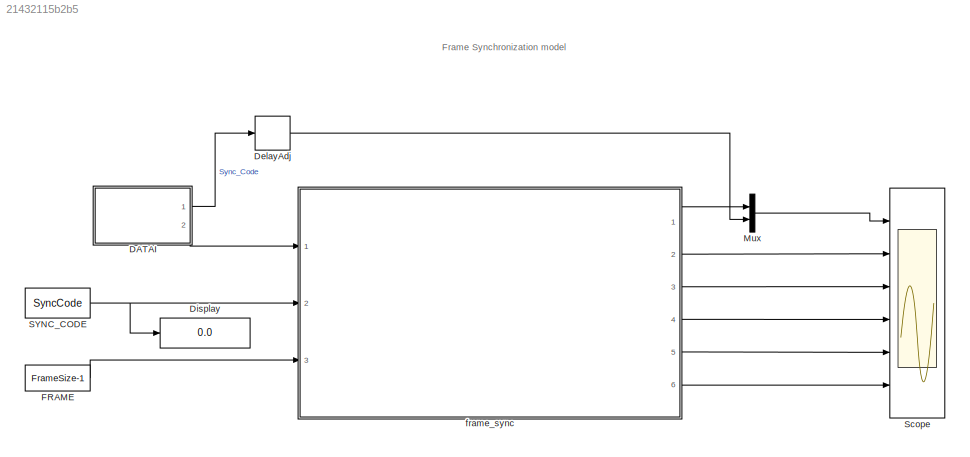
MODEL slx_21432115b2b5
KIND model
CONFIG AbsTol = auto
CONFIG FixedStep = auto
CONFIG MaxStep = auto
CONFIG MinStep = auto
CONFIG PreLoadFcn = frame_sync_param
CONFIG RelTol = 1e-3
CONFIG SampleTimeConstraint = Unconstrained
CONFIG Solver = FixedStepDiscrete
CONFIG SolverMode = SingleTasking
CONFIG SolverName = FixedStepDiscrete
CONFIG StartTime = 0.0
CONFIG StopTime = 10000
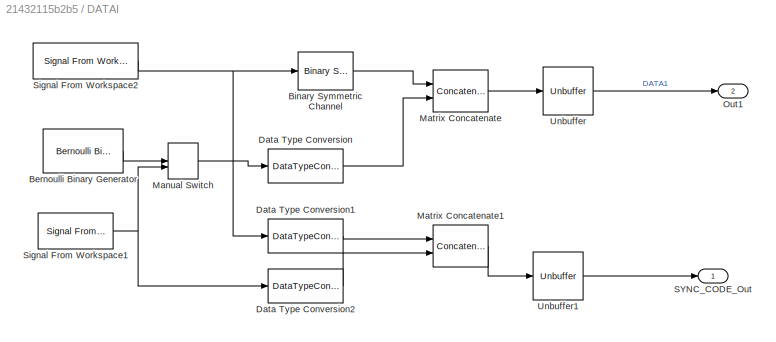
BLOCK [SubSystem] DATAI
  Ports = [0, 2]
  RequestExecContextInheritance = off
  Variant = off
BLOCK [Reference] DATAI/Bernoulli Binary Generator  REF=commrandsrc2/Bernoulli Binary
Generator
  Ports = [0, 1]
  SourceBlock = commrandsrc2/Bernoulli Binary\nGenerator
  SourceType = Bernoulli Binary Generator
BLOCK [Reference] DATAI/Binary Symmetric Channel  REF=commchan3/Binary Symmetric
Channel
  Ports = [1, 1]
  SourceBlock = commchan3/Binary Symmetric\nChannel
  SourceType = Binary Symmetric Channel
BLOCK [DataTypeConversion] DATAI/Data Type Conversion
  OutDataTypeStr = boolean
  RndMeth = Floor
  SaturateOnIntegerOverflow = off
BLOCK [DataTypeConversion] DATAI/Data Type Conversion1
  OutDataTypeStr = boolean
  RndMeth = Floor
  SaturateOnIntegerOverflow = off
BLOCK [DataTypeConversion] DATAI/Data Type Conversion2
  OutDataTypeStr = boolean
  RndMeth = Floor
  SaturateOnIntegerOverflow = off
BLOCK [ManualSwitch] DATAI/Manual Switch
BLOCK [Concatenate] DATAI/Matrix Concatenate
  Mode = Multidimensional array
  Ports = [2, 1]
BLOCK [Concatenate] DATAI/Matrix Concatenate1
  Mode = Multidimensional array
  Ports = [2, 1]
BLOCK [Outport] DATAI/Out1
  IconDisplay = Port number
  Port = 2
BLOCK [Outport] DATAI/SYNC_CODE_Out
  IconDisplay = Port number
BLOCK [Reference] DATAI/Signal From Workspace1  REF=dspsrcs4/Signal From
Workspace
  Ports = [0, 1]
  SourceBlock = dspsrcs4/Signal From\nWorkspace
  SourceType = Signal From Workspace
BLOCK [Reference] DATAI/Signal From Workspace2  REF=dspsrcs4/Signal From
Workspace
  Ports = [0, 1]
  SourceBlock = dspsrcs4/Signal From\nWorkspace
  SourceType = Signal From Workspace
BLOCK [Unbuffer] DATAI/Unbuffer
  Ports = [1, 1]
  SampleBasedProcessing = Same as frame based
BLOCK [Unbuffer] DATAI/Unbuffer1
  Ports = [1, 1]
  SampleBasedProcessing = Same as frame based
BLOCK [Delay] DelayAdj
  DelayLength = 1
  InputPortMap = u0
  Ports = [1, 1]
BLOCK [Display] Display
  Decimation = 1
  Format = binary (Stored Integer)
  Ports = [1]
BLOCK [Constant] FRAME
  OutDataTypeStr = fixdt(0,8,0)
  SampleTime = -1
  Value = FrameSize-1
BLOCK [Mux] Mux
  DisplayOption = bar
  Inputs = 2
  Ports = [2, 1]
BLOCK [Constant] SYNC_CODE
  OutDataTypeStr = fixdt(0,8,0)
  SampleTime = -1
  Value = SyncCode
BLOCK [Scope] Scope
  NumInputPorts = 6
  Ports = [6]
  ScopeSpecificationString = Simulink.scopes.TimeScopeBlockCfg('CurrentConfiguration', extmgr.ConfigurationSet(extmgr.Configuration('Core','General UI',true),extmgr.Configuration('Core','Source UI',true),extmgr.Configuration('Sources','WiredSimulink',true,'DataLoggingSaveFormat','StructureWithTime','DataLoggingLimitDataPoints',true,'DataLoggingDecimation','1','DataLoggingDecimateData',true),extmgr.Configuration('Visuals','Tim...<+6500ch>
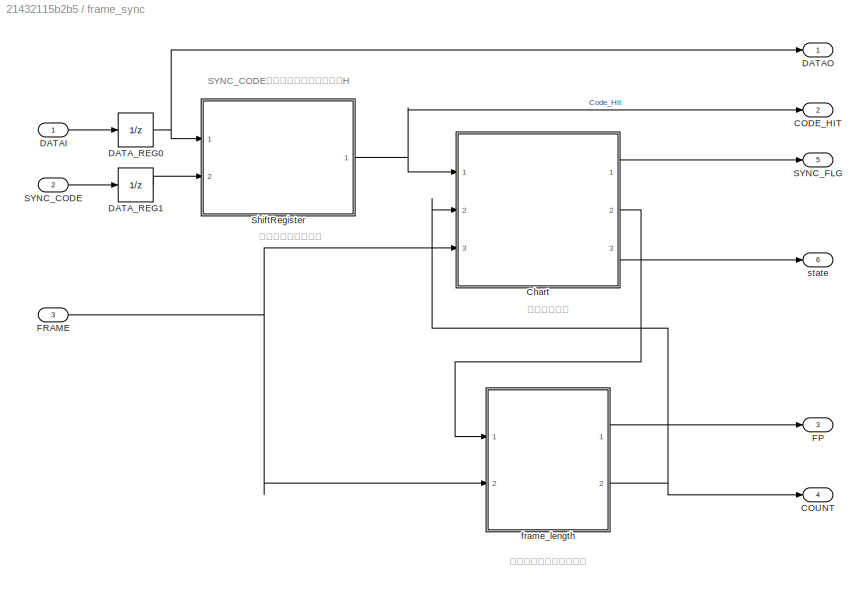
BLOCK [SubSystem] frame_sync
  Ports = [3, 6]
  RequestExecContextInheritance = off
  Variant = off
BLOCK [Outport] frame_sync/CODE_HIT
  IconDisplay = Port number
  Port = 2
BLOCK [Outport] frame_sync/COUNT
  IconDisplay = Port number
  Port = 4
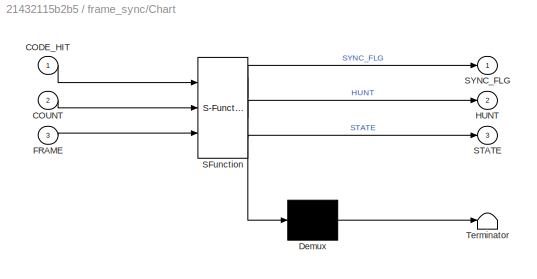
BLOCK [SubSystem] frame_sync/Chart
  ErrorFcn = Stateflow.Translate.translate
  PermitHierarchicalResolution = ExplicitOnly
  Ports = [3, 3]
  RequestExecContextInheritance = off
  SFBlockType = Chart
  TreatAsAtomicUnit = on
  Variant = off
BLOCK [Demux] frame_sync/Chart/ Demux 
  Outputs = 1
  Ports = [1, 1]
BLOCK [S-Function] frame_sync/Chart/ SFunction 
  EnableBusSupport = on
  FunctionName = sf_sfun
  PortCounts = [3 4]
  Ports = [3, 4]
  SFunctionDeploymentMode = off
  Tag = Stateflow S-Function sf_framesync 2
BLOCK [Terminator] frame_sync/Chart/ Terminator 
BLOCK [Inport] frame_sync/Chart/CODE_HIT
  IconDisplay = Port number
BLOCK [Inport] frame_sync/Chart/COUNT
  IconDisplay = Port number
  Port = 2
BLOCK [Inport] frame_sync/Chart/FRAME
  IconDisplay = Port number
  Port = 3
BLOCK [Outport] frame_sync/Chart/HUNT
  IconDisplay = Port number
  Port = 2
BLOCK [Outport] frame_sync/Chart/STATE
  IconDisplay = Port number
  Port = 3
BLOCK [Outport] frame_sync/Chart/SYNC_FLG
  IconDisplay = Port number
BLOCK [Inport] frame_sync/DATAI
  IconDisplay = Port number
BLOCK [Outport] frame_sync/DATAO
  IconDisplay = Port number
BLOCK [UnitDelay] frame_sync/DATA_REG0
  SampleTime = -1
BLOCK [UnitDelay] frame_sync/DATA_REG1
  SampleTime = -1
BLOCK [Outport] frame_sync/FP
  IconDisplay = Port number
  Port = 3
BLOCK [Inport] frame_sync/FRAME
  IconDisplay = Port number
  Port = 3
BLOCK [Inport] frame_sync/SYNC_CODE
  IconDisplay = Port number
  Port = 2
BLOCK [Outport] frame_sync/SYNC_FLG
  IconDisplay = Port number
  Port = 5
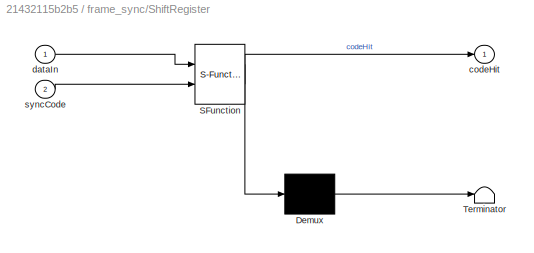
BLOCK [SubSystem] frame_sync/ShiftRegister
  ErrorFcn = Stateflow.Translate.translate
  PermitHierarchicalResolution = ExplicitOnly
  Ports = [2, 1]
  RequestExecContextInheritance = off
  SFBlockType = MATLAB Function
  TreatAsAtomicUnit = on
  Variant = off
BLOCK [Demux] frame_sync/ShiftRegister/ Demux 
  Outputs = 1
  Ports = [1, 1]
BLOCK [S-Function] frame_sync/ShiftRegister/ SFunction 
  EnableBusSupport = on
  FunctionName = sf_sfun
  PortCounts = [2 2]
  Ports = [2, 2]
  SFunctionDeploymentMode = off
  Tag = Stateflow S-Function sf_framesync 56
BLOCK [Terminator] frame_sync/ShiftRegister/ Terminator 
BLOCK [Outport] frame_sync/ShiftRegister/codeHit
  IconDisplay = Port number
BLOCK [Inport] frame_sync/ShiftRegister/dataIn
  IconDisplay = Port number
BLOCK [Inport] frame_sync/ShiftRegister/syncCode
  IconDisplay = Port number
  Port = 2
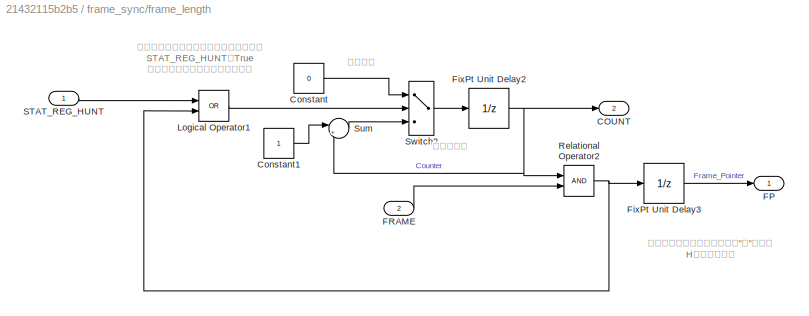
BLOCK [SubSystem] frame_sync/frame_length
  MinAlgLoopOccurrences = on
  Ports = [2, 2]
  RequestExecContextInheritance = off
  Variant = off
BLOCK [Outport] frame_sync/frame_length/COUNT
  IconDisplay = Port number
  Port = 2
BLOCK [Constant] frame_sync/frame_length/Constant
  OutDataTypeStr = uint8
  SampleTime = -1
  Value = 0
BLOCK [Constant] frame_sync/frame_length/Constant1
  OutDataTypeStr = fixdt(0,4,0)
  SampleTime = -1
BLOCK [Outport] frame_sync/frame_length/FP
  IconDisplay = Port number
BLOCK [Inport] frame_sync/frame_length/FRAME
  IconDisplay = Port number
  Port = 2
BLOCK [UnitDelay] frame_sync/frame_length/FixPt Unit Delay2
  SampleTime = -1
BLOCK [UnitDelay] frame_sync/frame_length/FixPt Unit Delay3
  SampleTime = -1
BLOCK [Logic] frame_sync/frame_length/Logical Operator1
  AllPortsSameDT = off
  Operator = OR
  OutDataTypeStr = boolean
  Ports = [2, 1]
BLOCK [RelationalOperator] frame_sync/frame_length/Relational Operator2
  InputSameDT = off
  OutDataTypeStr = boolean
  Ports = [2, 1]
  ZeroCross = off
BLOCK [Inport] frame_sync/frame_length/STAT_REG_HUNT
  IconDisplay = Port number
BLOCK [Sum] frame_sync/frame_length/Sum
  IconShape = round
  InputSameDT = off
  Inputs = |++
  OutDataTypeStr = fixdt(0,8,0)
  Ports = [2, 1]
  SaturateOnIntegerOverflow = off
BLOCK [Switch] frame_sync/frame_length/Switch2
  InputSameDT = off
  SaturateOnIntegerOverflow = off
  Threshold = 0.5
  ZeroCross = off
BLOCK [Outport] frame_sync/state
  IconDisplay = Port number
  Port = 6
ANNOTATION (root): Frame Synchronization model
ANNOTATION frame_sync: SYNC_CODEと入力信号が一致したらH
ANNOTATION frame_sync: パターン一致を判定
ANNOTATION frame_sync: フレーム長のカウンター
ANNOTATION frame_sync: 制御ロジック
ANNOTATION frame_sync/frame_length: カウンター
ANNOTATION frame_sync/frame_length: カウンターがフレームサイズに達するか STAT_REG_HUNTがTrue になったらカウンターをリセット
ANNOTATION frame_sync/frame_length: カウンターがリセットされて"０"のとき Hが出力される
ANNOTATION frame_sync/frame_length: リセット
LINE DATAI/Bernoulli Binary Generator:1 -> DATAI/Manual Switch:1
LINE DATAI/Binary Symmetric Channel:1 -> DATAI/Matrix Concatenate:1
LINE DATAI/Data Type Conversion1:1 -> DATAI/Matrix Concatenate1:1
LINE DATAI/Data Type Conversion2:1 -> DATAI/Matrix Concatenate1:2
LINE DATAI/Data Type Conversion:1 -> DATAI/Matrix Concatenate:2
LINE DATAI/Manual Switch:1 -> DATAI/Data Type Conversion:1
LINE DATAI/Matrix Concatenate1:1 -> DATAI/Unbuffer1:1
LINE DATAI/Matrix Concatenate:1 -> DATAI/Unbuffer:1
NET DATAI/Signal From Workspace1:1 -> DATAI/Data Type Conversion2:1, DATAI/Manual Switch:2
NET DATAI/Signal From Workspace2:1 -> DATAI/Binary Symmetric Channel:1, DATAI/Data Type Conversion1:1
LINE DATAI/Unbuffer1:1 -> DATAI/SYNC_CODE_Out:1
LINE DATAI/Unbuffer:1 -> DATAI/Out1:1
LINE DATAI:1 -> DelayAdj:1
LINE DATAI:2 -> frame_sync:1
LINE DelayAdj:1 -> Mux:2
LINE FRAME:1 -> frame_sync:3
LINE Mux:1 -> Scope:1
NET SYNC_CODE:1 -> Display:1, frame_sync:2
LINE frame_sync/Chart:1 -> frame_sync/SYNC_FLG:1
LINE frame_sync/Chart:2 -> frame_sync/frame_length:1
LINE frame_sync/Chart:3 -> frame_sync/state:1
LINE frame_sync/DATAI:1 -> frame_sync/DATA_REG0:1
NET frame_sync/DATA_REG0:1 -> frame_sync/DATAO:1, frame_sync/ShiftRegister:1
LINE frame_sync/DATA_REG1:1 -> frame_sync/ShiftRegister:2
NET frame_sync/FRAME:1 -> frame_sync/Chart:3, frame_sync/frame_length:2
LINE frame_sync/SYNC_CODE:1 -> frame_sync/DATA_REG1:1
NET frame_sync/ShiftRegister:1 -> frame_sync/CODE_HIT:1, frame_sync/Chart:1
LINE frame_sync/frame_length/Constant1:1 -> frame_sync/frame_length/Sum:1
LINE frame_sync/frame_length/Constant:1 -> frame_sync/frame_length/Switch2:1
LINE frame_sync/frame_length/FRAME:1 -> frame_sync/frame_length/Relational Operator2:2
NET frame_sync/frame_length/FixPt Unit Delay2:1 -> frame_sync/frame_length/COUNT:1, frame_sync/frame_length/Relational Operator2:1, frame_sync/frame_length/Sum:2
LINE frame_sync/frame_length/FixPt Unit Delay3:1 -> frame_sync/frame_length/FP:1
LINE frame_sync/frame_length/Logical Operator1:1 -> frame_sync/frame_length/Switch2:2
NET frame_sync/frame_length/Relational Operator2:1 -> frame_sync/frame_length/FixPt Unit Delay3:1, frame_sync/frame_length/Logical Operator1:2
LINE frame_sync/frame_length/STAT_REG_HUNT:1 -> frame_sync/frame_length/Logical Operator1:1
LINE frame_sync/frame_length/Sum:1 -> frame_sync/frame_length/Switch2:3
LINE frame_sync/frame_length/Switch2:1 -> frame_sync/frame_length/FixPt Unit Delay2:1
LINE frame_sync/frame_length:1 -> frame_sync/FP:1
NET frame_sync/frame_length:2 -> frame_sync/COUNT:1, frame_sync/Chart:2
LINE frame_sync:1 -> Mux:1
LINE frame_sync:2 -> Scope:2
LINE frame_sync:3 -> Scope:3
LINE frame_sync:4 -> Scope:4
LINE frame_sync:5 -> Scope:5
LINE frame_sync:6 -> Scope:6
note: NET lines group one-source signal fan-out (src -> all destinations, sorted); 1:1 wires keep LINE
CHART frame_sync/Chart states=5 transitions=9
  STATE_LABEL 'HUNT/\n\nSYNC_FLG = 0;\nHUNT = 1;\nSTATE=1;'
  STATE_LABEL '情報表示/Stateflowアニメーション/\nで表示速度を調節可能'
  STATE_LABEL 'FOUND/\n\nSYNC_FLG = 0;\nHUNT = 0;\nSTATE=2;'
  STATE_LABEL 'LOST/\n\nSYNC_FLG = 1;\nHUNT = 0;\nSTATE=4;'
  STATE_LABEL 'SYNC/\n\nSYNC_FLG = 1;\nHUNT = 0;\nSTATE=3;'
CHART frame_sync/ShiftRegister states=1 transitions=1
  STATE_LABEL 'eML_blk_kernel()'
  STATE_LABEL 'SCRIPT:\nfunction codeHit = fcn(dataIn, syncCode)\n\npersistent u_d;\nif isempty(u_d)\n    u_d = fi(zeros(1,8), 0,8,0);\nend\n\nd1 = uint8(dataIn);\nd2 = uint8(bitshift(u_d(1),1));\nd3 = uint8(bitshift(u_d(2),2));\nd4 = uint8(bitshift(u_d(3),3));\nd5 = uint8(bitshift(u_d(4),4));\nd6 = uint8(bitshift(u_d(5),5));\nd7 = uint8(bitshift(u_d(6),6));\nd8 = uint8(bitshift(u_d(7),7));\n\nu_d = [dataIn, u_d(1), u_d(2), u_d(...<+243ch>'
